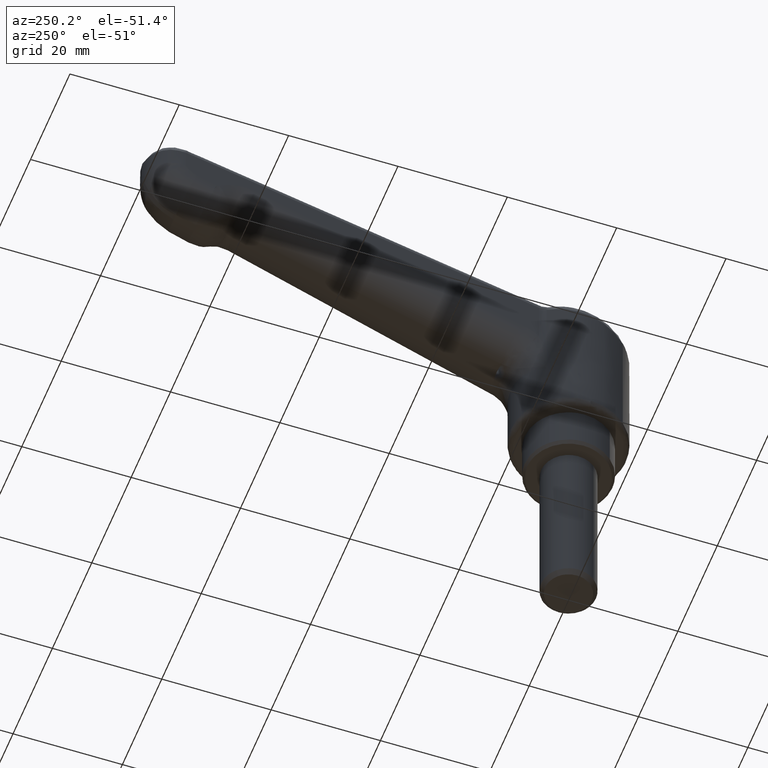
[diagram: clean part render]
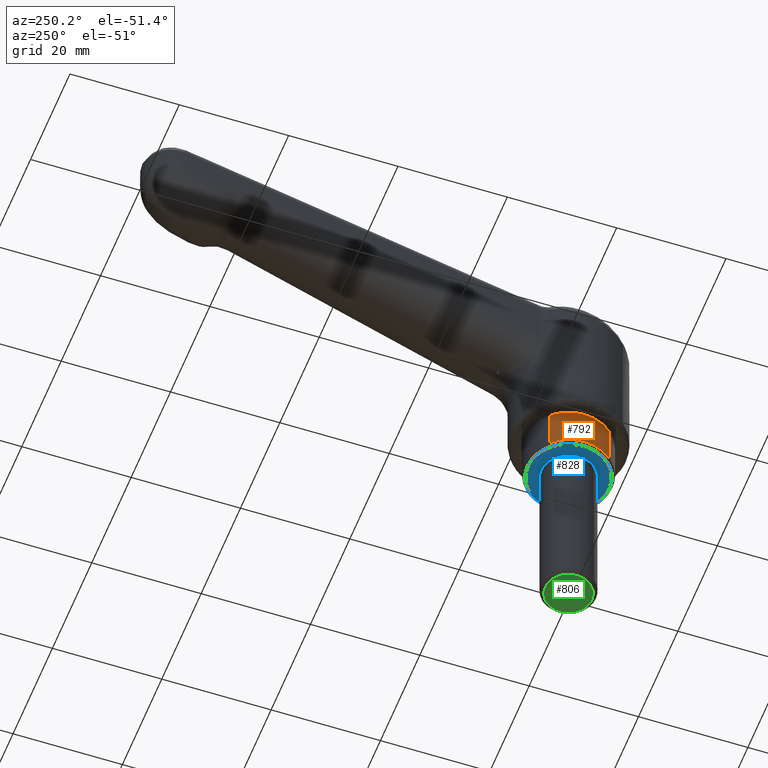
[diagram: same view with three faces highlighted in distinct colors, each labeled with its STEP entity id]
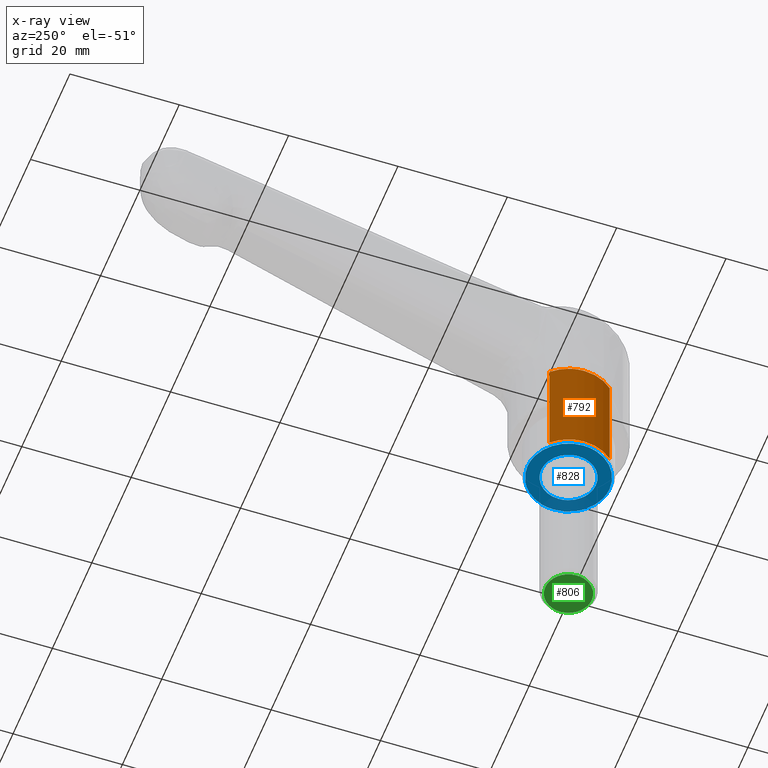
[diagram: x-ray of the same camera — body ghosted, the three highlighted faces saturated]
A machine part, auxiliary view with three faces highlighted in distinct colors.
The next image is the same camera in x-ray (body ghosted, the three faces saturated) — at least one of them is partly hidden behind the body in this view.
Their STEP definitions:

[orange] entity #792 — the highlighted face is a freeform B-spline surface patch.
#537=CARTESIAN_POINT('',(-5.404721820640237,5.898218841487182,-7.499999999999840));
#538=VERTEX_POINT('',#537);
#549=CARTESIAN_POINT('',(-0.000000868449518,7.999999999999953,-7.499999999999840));
#550=VERTEX_POINT('',#549);
#551=CARTESIAN_POINT('',(-0.000000868449518,7.999999999999953,-7.499999999999840));
#552=CARTESIAN_POINT('',(-0.401789589603420,8.000017098160935,-7.499999999999836));
#553=CARTESIAN_POINT('',(-1.236272001063092,7.937011895085488,-7.499999999999857));
#554=CARTESIAN_POINT('',(-2.473624329282662,7.644963287570554,-7.499999999999844));
#555=CARTESIAN_POINT('',(-3.933896005822123,7.037804326091514,-7.499999999999855));
#556=CARTESIAN_POINT('',(-4.880761526070574,6.378668293329109,-7.499999999999832));
#557=CARTESIAN_POINT('',(-5.404721820640237,5.898218841487182,-7.499999999999840));
#558=B_SPLINE_CURVE_WITH_KNOTS('',3,(#551,#552,#553,#554,#555,#556,#557),.UNSPECIFIED.,.F.,.U.,(4,1,1,1,4),(0.000000017501768,1.205371051327649,2.503473894968305,3.801558917053700,5.934151899018615),.UNSPECIFIED.);
#559=EDGE_CURVE('',#550,#538,#558,.T.);
#561=CARTESIAN_POINT('',(5.579455816611006,5.733207594180641,-7.499999999999839));
#562=VERTEX_POINT('',#561);
#563=CARTESIAN_POINT('',(5.579455816611006,5.733207594180641,-7.499999999999839));
#564=CARTESIAN_POINT('',(5.003507286801673,6.294217179991324,-7.499999999999871));
#565=CARTESIAN_POINT('',(4.024540995437059,6.993999550568444,-7.499999999999794));
#566=CARTESIAN_POINT('',(2.568002196061286,7.606139692300737,-7.499999999999881));
#567=CARTESIAN_POINT('',(1.350648998123143,7.921214749724847,-7.499999999999733));
#568=CARTESIAN_POINT('',(0.482382902118123,8.000052846914651,-7.499999999999945));
#569=CARTESIAN_POINT('',(-0.000000868449518,7.999999999999953,-7.499999999999840));
#570=B_SPLINE_CURVE_WITH_KNOTS('',3,(#563,#564,#565,#566,#567,#568,#569),.UNSPECIFIED.,.F.,.U.,(4,1,1,1,4),(0.000000017542862,2.411917881733490,3.569623984094885,4.727353768447296,6.174501230675460),.UNSPECIFIED.);
#571=EDGE_CURVE('',#562,#550,#570,.T.);
#672=CARTESIAN_POINT('',(5.579455816952638,5.733207593848230,11.999999999999980));
#673=VERTEX_POINT('',#672);
#718=CARTESIAN_POINT('',(-5.404721820807360,5.898218841333985,12.000000000001080));
#719=VERTEX_POINT('',#718);
#731=CARTESIAN_POINT('',(-5.404721820807360,5.898218841333985,12.000000000001080));
#732=CARTESIAN_POINT('',(-5.404721820640237,5.898218841487182,-7.499999999999840));
#733=QUASI_UNIFORM_CURVE('',1,(#731,#732),.UNSPECIFIED.,.F.,.U.);
#734=EDGE_CURVE('',#719,#538,#733,.T.);
#742=CARTESIAN_POINT('',(5.579455816952638,5.733207593848230,11.999999999999980));
#743=CARTESIAN_POINT('',(5.579455816611006,5.733207594180641,-7.499999999999839));
#744=QUASI_UNIFORM_CURVE('',1,(#742,#743),.UNSPECIFIED.,.F.,.U.);
#745=EDGE_CURVE('',#673,#562,#744,.T.);
#750=CARTESIAN_POINT('',(-5.404721660925280,5.898218694480991,12.487500000000230));
#751=CARTESIAN_POINT('',(0.165281452494910,11.002186186682017,12.487500000000225));
#752=CARTESIAN_POINT('',(5.579455939122908,5.733207777796483,12.487500000000221));
#753=CARTESIAN_POINT('',(-5.404721660925280,5.898218694480991,-7.999687499999841));
#754=CARTESIAN_POINT('',(0.165281452494910,11.002186186682017,-7.999687499999841));
#755=CARTESIAN_POINT('',(5.579455939122908,5.733207777796483,-7.999687499999843));
#763=(BOUNDED_SURFACE()B_SPLINE_SURFACE(2,1,((#750,#753),(#751,#754),(#752,#755)),.UNSPECIFIED.,.F.,.F.,.U.)B_SPLINE_SURFACE_WITH_KNOTS((3,3),(2,2),(0.0,12.721148469670320),(0.0,20.487187500000068),.UNSPECIFIED.)GEOMETRIC_REPRESENTATION_ITEM()RATIONAL_B_SPLINE_SURFACE(((1.0,1.0),(0.718822509939086,0.718822509939086),(0.977505800795127,0.977505800795127)))REPRESENTATION_ITEM('')SURFACE());
#764=CARTESIAN_POINT('',(-0.000000868449344,7.999999999999953,12.000000000000220));
#765=VERTEX_POINT('',#764);
#766=CARTESIAN_POINT('',(5.579455816952638,5.733207593848230,11.999999999999980));
#767=CARTESIAN_POINT('',(5.003546180424339,6.294274779100855,12.000000000000041));
#768=CARTESIAN_POINT('',(4.024499796478273,6.993932631958447,12.0));
#769=CARTESIAN_POINT('',(2.508571137070458,7.631166045808949,12.000000000000171));
#770=CARTESIAN_POINT('',(1.286344060565995,7.931791835117536,12.000000000000060));
#771=CARTESIAN_POINT('',(0.418062694701874,8.000025031659115,12.000000000000300));
#772=CARTESIAN_POINT('',(-0.000000868449344,7.999999999999953,12.000000000000220));
#773=B_SPLINE_CURVE_WITH_KNOTS('',3,(#766,#767,#768,#769,#770,#771,#772),.UNSPECIFIED.,.F.,.U.,(4,1,1,1,4),(0.000000017542756,2.411917881919631,3.569623984370369,4.920306073596558,6.174501231151978),.UNSPECIFIED.);
#774=EDGE_CURVE('',#673,#765,#773,.T.);
#775=ORIENTED_EDGE('',*,*,#774,.F.);
#776=ORIENTED_EDGE('',*,*,#745,.T.);
#777=ORIENTED_EDGE('',*,*,#571,.T.);
#778=ORIENTED_EDGE('',*,*,#559,.T.);
#779=ORIENTED_EDGE('',*,*,#734,.F.);
#780=CARTESIAN_POINT('',(-0.000000868449344,7.999999999999953,12.000000000000220));
#781=CARTESIAN_POINT('',(-0.649062120532924,8.000170291972882,12.000000000000311));
#782=CARTESIAN_POINT('',(-1.730714042899840,7.867592183143378,12.000000000000520));
#783=CARTESIAN_POINT('',(-2.994478340826905,7.442400210076500,12.000000000000700));
#784=CARTESIAN_POINT('',(-4.191309177657441,6.861319291989461,12.000000000000840));
#785=CARTESIAN_POINT('',(-4.926296491560218,6.336849494364754,12.000000000001060));
#786=CARTESIAN_POINT('',(-5.404721820807360,5.898218841333985,12.000000000001080));
#787=B_SPLINE_CURVE_WITH_KNOTS('',3,(#780,#781,#782,#783,#784,#785,#786),.UNSPECIFIED.,.F.,.U.,(4,1,1,1,4),(0.000000017500764,1.947144877312574,3.245224251870040,3.987007039436270,5.934151899245499),.UNSPECIFIED.);
#788=EDGE_CURVE('',#765,#719,#787,.T.);
#789=ORIENTED_EDGE('',*,*,#788,.F.);
#790=EDGE_LOOP('',(#775,#776,#777,#778,#779,#789));
#791=FACE_OUTER_BOUND('',#790,.T.);
#792=ADVANCED_FACE('',(#791),#763,.T.);

[blue] entity #828 — the highlighted face is a freeform B-spline surface patch.
#300=CARTESIAN_POINT('',(-3.626871692151759,-3.441772649813121,-7.999999999999787));
#301=VERTEX_POINT('',#300);
#307=CARTESIAN_POINT('',(-5.0,0.0,-7.999999999999789));
#308=VERTEX_POINT('',#307);
#309=CARTESIAN_POINT('',(-5.0,0.0,-7.999999999999789));
#310=CARTESIAN_POINT('',(-5.000064280185167,-0.355889402434258,-7.999999999999796));
#311=CARTESIAN_POINT('',(-4.938503162133185,-0.929227815387417,-7.999999999999782));
#312=CARTESIAN_POINT('',(-4.687731477409107,-1.805476403558021,-7.999999999999798));
#313=CARTESIAN_POINT('',(-4.294351205526193,-2.630606627033335,-7.999999999999782));
#314=CARTESIAN_POINT('',(-3.871893606012027,-3.183662831741487,-7.999999999999778));
#315=CARTESIAN_POINT('',(-3.626871692151759,-3.441772649813121,-7.999999999999787));
#316=B_SPLINE_CURVE_WITH_KNOTS('',3,(#309,#310,#311,#312,#313,#314,#315),.UNSPECIFIED.,.F.,.U.,(4,1,1,1,4),(0.000000026095447,1.067658143280683,1.720115271875948,2.728455105045868,3.796113222217000),.UNSPECIFIED.);
#317=EDGE_CURVE('',#308,#301,#316,.T.);
#319=CARTESIAN_POINT('',(-0.000001103779349,4.999999999999878,-7.999999999999789));
#320=VERTEX_POINT('',#319);
#321=CARTESIAN_POINT('',(-0.000001103779349,4.999999999999878,-7.999999999999789));
#322=CARTESIAN_POINT('',(-0.470441975822138,5.000196043293731,-7.999999999999795));
#323=CARTESIAN_POINT('',(-1.227086763881716,4.892355118754490,-7.999999999999772));
#324=CARTESIAN_POINT('',(-2.338020565900336,4.463882242120339,-7.999999999999789));
#325=CARTESIAN_POINT('',(-3.198894129145697,3.896301851222552,-7.999999999999798));
#326=CARTESIAN_POINT('',(-3.883017268040137,3.186343851021909,-7.999999999999782));
#327=CARTESIAN_POINT('',(-4.358715016342929,2.492993198492975,-7.999999999999808));
#328=CARTESIAN_POINT('',(-4.674697816899270,1.824913079576614,-7.999999999999789));
#329=CARTESIAN_POINT('',(-4.930481079109805,0.981703186871804,-7.999999999999723));
#330=CARTESIAN_POINT('',(-5.000084558044544,0.388613427327358,-7.999999999999915));
#331=CARTESIAN_POINT('',(-5.0,0.0,-7.999999999999789));
#332=B_SPLINE_CURVE_WITH_KNOTS('',3,(#321,#322,#323,#324,#325,#326,#327,#328,#329,#330,#331),.UNSPECIFIED.,.F.,.U.,(4,1,1,1,1,1,1,1,4),(0.000000097203212,1.411259758466368,2.270310549849951,3.558871746765917,4.479238645372305,5.215559708955095,6.074605755319403,6.688213260910828,7.854030292268615),.UNSPECIFIED.);
#333=EDGE_CURVE('',#320,#308,#332,.T.);
#335=CARTESIAN_POINT('',(5.0,0.0,-7.999999999999789));
#336=VERTEX_POINT('',#335);
#337=CARTESIAN_POINT('',(5.0,0.0,-7.999999999999789));
#338=CARTESIAN_POINT('',(5.000326109408091,0.552285053288000,-7.999999999999780));
#339=CARTESIAN_POINT('',(4.863055884499499,1.370165345650487,-7.999999999999807));
#340=CARTESIAN_POINT('',(4.403738947201187,2.423444590565105,-7.999999999999782));
#341=CARTESIAN_POINT('',(3.855744452348204,3.243714687971242,-7.999999999999803));
#342=CARTESIAN_POINT('',(3.114413451346123,3.958221952537999,-7.999999999999717));
#343=CARTESIAN_POINT('',(2.156294823080378,4.556778655121509,-7.999999999999875));
#344=CARTESIAN_POINT('',(1.124937665598018,4.918695205832672,-7.999999999999832));
#345=CARTESIAN_POINT('',(0.347696860981222,5.000029896821008,-7.999999999999703));
#346=CARTESIAN_POINT('',(-0.000001103779349,4.999999999999878,-7.999999999999789));
#347=B_SPLINE_CURVE_WITH_KNOTS('',3,(#337,#338,#339,#340,#341,#342,#343,#344,#345,#346),.UNSPECIFIED.,.F.,.U.,(4,1,1,1,1,1,1,4),(0.000000096817831,1.656707152819139,2.454392529768717,3.436170344008168,4.601945983390094,5.522359643949219,6.810920129419353,7.854031536492999),.UNSPECIFIED.);
#348=EDGE_CURVE('',#336,#320,#347,.T.);
#350=CARTESIAN_POINT('',(3.228710429602193,-3.817778370063518,-7.999999999999788));
#351=VERTEX_POINT('',#350);
#352=CARTESIAN_POINT('',(3.228710429602193,-3.817778370063518,-7.999999999999788));
#353=CARTESIAN_POINT('',(3.643564636190706,-3.467351711759754,-7.999999999999782));
#354=CARTESIAN_POINT('',(4.237991118607391,-2.769128607500307,-7.999999999999795));
#355=CARTESIAN_POINT('',(4.851067656871609,-1.447824184366138,-7.999999999999778));
#356=CARTESIAN_POINT('',(5.000313366956289,-0.543039954493708,-7.999999999999800));
#357=CARTESIAN_POINT('',(5.0,0.0,-7.999999999999789));
#358=B_SPLINE_CURVE_WITH_KNOTS('',3,(#352,#353,#354,#355,#356,#357),.UNSPECIFIED.,.F.,.U.,(4,1,1,4),(0.000000033444583,1.629016363478472,2.715025173613623,4.344041503629333),.UNSPECIFIED.);
#359=EDGE_CURVE('',#351,#336,#358,.T.);
#385=CARTESIAN_POINT('',(0.000001103779310,-4.999999999999878,-7.999999999999789));
#386=VERTEX_POINT('',#385);
#387=CARTESIAN_POINT('',(0.000001103779310,-4.999999999999878,-7.999999999999789));
#388=CARTESIAN_POINT('',(0.292497077806147,-5.000013982251756,-7.999999999999794));
#389=CARTESIAN_POINT('',(0.968905010369025,-4.940528679409872,-7.999999999999789));
#390=CARTESIAN_POINT('',(2.097277982247787,-4.603048068901714,-7.999999999999790));
#391=CARTESIAN_POINT('',(2.851952960627691,-4.136689893905315,-7.999999999999788));
#392=CARTESIAN_POINT('',(3.228710429602193,-3.817778370063518,-7.999999999999788));
#393=B_SPLINE_CURVE_WITH_KNOTS('',3,(#387,#388,#389,#390,#391,#392),.UNSPECIFIED.,.F.,.U.,(4,1,1,4),(0.000000020080380,0.877497794597346,2.029207884121568,3.509990187573193),.UNSPECIFIED.);
#394=EDGE_CURVE('',#386,#351,#393,.T.);
#396=CARTESIAN_POINT('',(-3.626871692151759,-3.441772649813121,-7.999999999999787));
#397=CARTESIAN_POINT('',(-3.350508691011283,-3.733120128624183,-7.999999999999793));
#398=CARTESIAN_POINT('',(-2.776304861834567,-4.207926686878392,-7.999999999999774));
#399=CARTESIAN_POINT('',(-1.828891564819324,-4.688227627735443,-7.999999999999815));
#400=CARTESIAN_POINT('',(-0.908795673168094,-4.945447872588546,-7.999999999999774));
#401=CARTESIAN_POINT('',(-0.295887175747678,-5.000020987692825,-7.999999999999790));
#402=CARTESIAN_POINT('',(0.000001103779310,-4.999999999999878,-7.999999999999789));
#403=B_SPLINE_CURVE_WITH_KNOTS('',3,(#396,#397,#398,#399,#400,#401,#402),.UNSPECIFIED.,.F.,.U.,(4,1,1,1,4),(0.000000027681850,1.204698727122665,2.219165650059670,3.170249548603886,4.057918743719057),.UNSPECIFIED.);
#404=EDGE_CURVE('',#301,#386,#403,.T.);
#425=CARTESIAN_POINT('',(-0.000001837508002,-7.499999999999775,-7.999999999999799));
#426=VERTEX_POINT('',#425);
#427=CARTESIAN_POINT('',(-5.256819965147500,-5.349378860057927,-7.999999770346292));
#428=VERTEX_POINT('',#427);
#429=CARTESIAN_POINT('',(-0.000001837508002,-7.499999999999775,-7.999999999999799));
#430=CARTESIAN_POINT('',(-0.637139064804244,-7.500193324577643,-7.999999972165331));
#431=CARTESIAN_POINT('',(-1.577540752246725,-7.379402841512403,-7.999999931082189));
#432=CARTESIAN_POINT('',(-2.819980507207728,-6.973775557338858,-7.999999876803992));
#433=CARTESIAN_POINT('',(-3.998384601013007,-6.406048717023292,-7.999999825323321));
#434=CARTESIAN_POINT('',(-4.802517412230472,-5.796090062617654,-7.999999790193276));
#435=CARTESIAN_POINT('',(-5.256819965147500,-5.349378860057927,-7.999999770346292));
#436=B_SPLINE_CURVE_WITH_KNOTS('',3,(#429,#430,#431,#432,#433,#434,#435),.UNSPECIFIED.,.F.,.U.,(4,1,1,1,4),(0.000000020612251,1.911352636856190,2.821530053167759,3.913717934236996,5.825070550470930),.UNSPECIFIED.);
#437=EDGE_CURVE('',#426,#428,#436,.T.);
#439=CARTESIAN_POINT('',(5.349377877255078,-5.256818999349845,-8.000000229653326));
#440=VERTEX_POINT('',#439);
#441=CARTESIAN_POINT('',(5.349377877255078,-5.256818999349845,-8.000000229653326));
#442=CARTESIAN_POINT('',(4.892918707531434,-5.721619173444946,-8.000000210057163));
#443=CARTESIAN_POINT('',(3.931720599063881,-6.473061294793850,-8.000000168792031));
#444=CARTESIAN_POINT('',(2.109198816578686,-7.291214166851699,-8.000000090549680));
#445=CARTESIAN_POINT('',(0.775554338996199,-7.500393852467454,-8.000000033295054));
#446=CARTESIAN_POINT('',(-0.000001837508002,-7.499999999999775,-7.999999999999799));
#447=B_SPLINE_CURVE_WITH_KNOTS('',3,(#441,#442,#443,#444,#445,#446),.UNSPECIFIED.,.F.,.U.,(4,1,1,4),(0.000000018941336,1.954309684861788,3.629419423322939,5.955975842369344),.UNSPECIFIED.);
#448=EDGE_CURVE('',#440,#426,#447,.T.);
#512=CARTESIAN_POINT('',(-7.500000000000000,0.0,-7.999999999999799));
#513=VERTEX_POINT('',#512);
#514=CARTESIAN_POINT('',(-5.256819965147500,-5.349378860057927,-7.999999770346292));
#515=CARTESIAN_POINT('',(-5.765944743130583,-4.849492610821446,-7.999999791806851));
#516=CARTESIAN_POINT('',(-6.506530266281575,-3.877320723564586,-7.999999833543042));
#517=CARTESIAN_POINT('',(-7.114624202654590,-2.476070656429148,-7.999999893699901));
#518=CARTESIAN_POINT('',(-7.427579810941316,-1.240800937915859,-7.999999946731209));
#519=CARTESIAN_POINT('',(-7.500049458522969,-0.465310823318564,-7.999999980023474));
#520=CARTESIAN_POINT('',(-7.500000000000000,0.0,-7.999999999999799));
#521=B_SPLINE_CURVE_WITH_KNOTS('',3,(#514,#515,#516,#517,#518,#519,#520),.UNSPECIFIED.,.F.,.U.,(4,1,1,1,4),(0.000000018922890,2.140436913752020,3.629418636947421,4.560044307743674,5.955974551950257),.UNSPECIFIED.);
#522=EDGE_CURVE('',#428,#513,#521,.T.);
#597=CARTESIAN_POINT('',(7.500000000000000,0.0,-7.999999999999799));
#598=VERTEX_POINT('',#597);
#599=CARTESIAN_POINT('',(7.500000000000000,0.0,-7.999999999999799));
#600=CARTESIAN_POINT('',(7.500079744378921,-0.515764585266981,-8.000000022531900));
#601=CARTESIAN_POINT('',(7.408857389603397,-1.395555401394479,-8.000000060967132));
#602=CARTESIAN_POINT('',(7.015035945065766,-2.769966942015935,-8.000000121010734));
#603=CARTESIAN_POINT('',(6.376726268338791,-4.054549757480733,-8.000000177130104));
#604=CARTESIAN_POINT('',(5.710922550194248,-4.888994522723587,-8.000000213584196));
#605=CARTESIAN_POINT('',(5.349377877255078,-5.256818999349845,-8.000000229653326));
#606=B_SPLINE_CURVE_WITH_KNOTS('',3,(#599,#600,#601,#602,#603,#604,#605),.UNSPECIFIED.,.F.,.U.,(4,1,1,1,4),(0.000000020594904,1.547285317002737,2.639501923059120,4.277786556528509,5.825071852913538),.UNSPECIFIED.);
#607=EDGE_CURVE('',#598,#440,#606,.T.);
#609=CARTESIAN_POINT('',(0.000001837507866,7.499999999999775,-7.999999999999799));
#610=VERTEX_POINT('',#609);
#611=CARTESIAN_POINT('',(0.000001837507866,7.499999999999775,-7.999999999999799));
#612=CARTESIAN_POINT('',(0.429510923046782,7.500036659154733,-7.999999999999795));
#613=CARTESIAN_POINT('',(1.257849177240104,7.428653566278252,-7.999999999999810));
#614=CARTESIAN_POINT('',(2.390572818049970,7.137522076870679,-7.999999999999790));
#615=CARTESIAN_POINT('',(3.439013340020187,6.695675129460226,-7.999999999999814));
#616=CARTESIAN_POINT('',(4.596351235473820,5.992470283108201,-7.999999999999814));
#617=CARTESIAN_POINT('',(5.683408594079126,4.982661496559301,-7.999999999999750));
#618=CARTESIAN_POINT('',(6.457066750391824,3.869452148967909,-7.999999999999890));
#619=CARTESIAN_POINT('',(6.961976433027978,2.850836420971213,-7.999999999999770));
#620=CARTESIAN_POINT('',(7.375033114604793,1.625952471280183,-7.999999999999833));
#621=CARTESIAN_POINT('',(7.500159667114872,0.613603304804631,-7.999999999999790));
#622=CARTESIAN_POINT('',(7.500000000000000,0.0,-7.999999999999799));
#623=B_SPLINE_CURVE_WITH_KNOTS('',3,(#611,#612,#613,#614,#615,#616,#617,#618,#619,#620,#621,#622),.UNSPECIFIED.,.F.,.U.,(4,1,1,1,1,1,1,1,1,4),(0.000000068853923,1.288529565890192,2.485059324324581,3.497505057862961,4.694016074478512,6.534787226343930,7.915378703737675,8.743743288788142,9.940270970072705,11.781045335908569),.UNSPECIFIED.);
#624=EDGE_CURVE('',#610,#598,#623,.T.);
#626=CARTESIAN_POINT('',(-7.500000000000000,0.0,-7.999999999999799));
#627=CARTESIAN_POINT('',(-7.500036413504179,0.429508196850274,-7.999999999999785));
#628=CARTESIAN_POINT('',(-7.423361875984109,1.319205934844997,-7.999999999999830));
#629=CARTESIAN_POINT('',(-7.045826175989802,2.717194712153439,-7.999999999999760));
#630=CARTESIAN_POINT('',(-6.393517725062237,4.013058933373398,-7.999999999999909));
#631=CARTESIAN_POINT('',(-5.597758051810028,5.032571946373476,-7.999999999999655));
#632=CARTESIAN_POINT('',(-4.774090465735458,5.816772336058745,-7.999999999999858));
#633=CARTESIAN_POINT('',(-3.922275809126653,6.424553370251287,-7.999999999999799));
#634=CARTESIAN_POINT('',(-2.854417210339708,6.970317327607057,-7.999999999999783));
#635=CARTESIAN_POINT('',(-1.564622186985335,7.387676721526010,-7.999999999999848));
#636=CARTESIAN_POINT('',(-0.552239166189065,7.500091383971560,-7.999999999999766));
#637=CARTESIAN_POINT('',(0.000001837507866,7.499999999999775,-7.999999999999799));
#638=B_SPLINE_CURVE_WITH_KNOTS('',3,(#626,#627,#628,#629,#630,#631,#632,#633,#634,#635,#636,#637),.UNSPECIFIED.,.F.,.U.,(4,1,1,1,1,1,1,1,1,4),(0.000000068211998,1.288529791873598,2.669142691701039,4.325868182230265,5.614440628432888,6.534788373304304,7.731298424378806,8.743744826266600,10.124339728738111,11.781047407221180),.UNSPECIFIED.);
#639=EDGE_CURVE('',#513,#610,#638,.T.);
#807=CARTESIAN_POINT('',(-8.249249970927089,8.249249970926844,-7.999999999999799));
#808=CARTESIAN_POINT('',(8.249250373258443,8.249249970926844,-7.999999999999799));
#809=CARTESIAN_POINT('',(-8.249249970927089,-8.249250373258194,-7.999999999999799));
#810=CARTESIAN_POINT('',(8.249250373258443,-8.249250373258194,-7.999999999999799));
#811=B_SPLINE_SURFACE_WITH_KNOTS('',1,1,((#807,#809),(#808,#810)),.UNSPECIFIED.,.F.,.F.,.U.,(2,2),(2,2),(0.0,16.498500344185530),(0.0,16.498500344185040),.UNSPECIFIED.);
#812=ORIENTED_EDGE('',*,*,#639,.T.);
#813=ORIENTED_EDGE('',*,*,#624,.T.);
#814=ORIENTED_EDGE('',*,*,#607,.T.);
#815=ORIENTED_EDGE('',*,*,#448,.T.);
#816=ORIENTED_EDGE('',*,*,#437,.T.);
#817=ORIENTED_EDGE('',*,*,#522,.T.);
#818=EDGE_LOOP('',(#812,#813,#814,#815,#816,#817));
#819=FACE_OUTER_BOUND('',#818,.T.);
#820=ORIENTED_EDGE('',*,*,#348,.T.);
#821=ORIENTED_EDGE('',*,*,#333,.T.);
#822=ORIENTED_EDGE('',*,*,#317,.T.);
#823=ORIENTED_EDGE('',*,*,#404,.T.);
#824=ORIENTED_EDGE('',*,*,#394,.T.);
#825=ORIENTED_EDGE('',*,*,#359,.T.);
#826=EDGE_LOOP('',(#820,#821,#822,#823,#824,#825));
#827=FACE_BOUND('',#826,.T.);
#828=ADVANCED_FACE('',(#819,#827),#811,.T.);

[green] entity #806 — the highlighted face is a freeform B-spline surface patch.
#66=CARTESIAN_POINT('',(0.000001200776021,4.249999999999830,-39.999999999999993));
#67=VERTEX_POINT('',#66);
#68=CARTESIAN_POINT('',(2.978864688839418,3.031314730026602,-39.999999849925871));
#69=VERTEX_POINT('',#68);
#70=CARTESIAN_POINT('',(0.000001200776021,4.249999999999830,-39.999999999999993));
#71=CARTESIAN_POINT('',(0.326654112557404,4.250072452875145,-39.999999983543340));
#72=CARTESIAN_POINT('',(0.893948480520442,4.184250466007558,-39.999999954963158));
#73=CARTESIAN_POINT('',(1.730485640189463,3.911218712777133,-39.999999912818772));
#74=CARTESIAN_POINT('',(2.409819295955719,3.531503864365101,-39.999999878594302));
#75=CARTESIAN_POINT('',(2.819460656544708,3.187965420814396,-39.999999857956432));
#76=CARTESIAN_POINT('',(2.978864688839418,3.031314730026602,-39.999999849925871));
#77=B_SPLINE_CURVE_WITH_KNOTS('',3,(#70,#71,#72,#73,#74,#75,#76),.UNSPECIFIED.,.F.,.U.,(4,1,1,1,4),(0.000000028241171,0.979948205483065,1.701995687098671,2.630384779181781,3.300873175637173),.UNSPECIFIED.);
#78=EDGE_CURVE('',#67,#69,#77,.T.);
#80=CARTESIAN_POINT('',(-4.250000000000000,0.0,-40.0));
#81=VERTEX_POINT('',#80);
#82=CARTESIAN_POINT('',(-4.250000000000000,0.0,-40.0));
#83=CARTESIAN_POINT('',(-4.250007322616236,0.260766663632477,-40.000000000000007));
#84=CARTESIAN_POINT('',(-4.193897868607354,0.869264842970804,-40.000000000000021));
#85=CARTESIAN_POINT('',(-3.924110105897664,1.720878773369061,-39.999999999999993));
#86=CARTESIAN_POINT('',(-3.466640155700594,2.505694704060133,-40.000000000000028));
#87=CARTESIAN_POINT('',(-2.911201861362774,3.133851981071482,-39.999999999999922));
#88=CARTESIAN_POINT('',(-2.174401723991318,3.694529074201974,-39.999999999999979));
#89=CARTESIAN_POINT('',(-1.199489429451590,4.133877749406633,-40.000000000000519));
#90=CARTESIAN_POINT('',(-0.417259144393960,4.250159600096990,-39.999999999999510));
#91=CARTESIAN_POINT('',(0.000001200776021,4.249999999999830,-39.999999999999993));
#92=B_SPLINE_CURVE_WITH_KNOTS('',3,(#82,#83,#84,#85,#86,#87,#88,#89,#90,#91),.UNSPECIFIED.,.F.,.U.,(4,1,1,1,1,1,1,4),(0.000000114845323,0.782315765273582,1.825451430376423,2.659957869883381,3.494419529049976,4.328918709624942,5.424193029768748,6.675926954008270),.UNSPECIFIED.);
#93=EDGE_CURVE('',#81,#67,#92,.T.);
#95=CARTESIAN_POINT('',(-0.000001200775992,-4.249999999999830,-40.0));
#96=VERTEX_POINT('',#95);
#97=CARTESIAN_POINT('',(-0.000001200775992,-4.249999999999830,-40.0));
#98=CARTESIAN_POINT('',(-0.486840392855738,-4.250379174479245,-39.999999999999972));
#99=CARTESIAN_POINT('',(-1.234147269614482,-4.120079745880286,-40.000000000000028));
#100=CARTESIAN_POINT('',(-2.088848074954197,-3.722130576176925,-39.999999999999950));
#101=CARTESIAN_POINT('',(-2.680418553517036,-3.321591762541416,-40.000000000000099));
#102=CARTESIAN_POINT('',(-3.150978443745245,-2.879051238130443,-39.999999999999837));
#103=CARTESIAN_POINT('',(-3.587044866236507,-2.313161394668195,-40.000000000000128));
#104=CARTESIAN_POINT('',(-3.945035735381930,-1.653268017342378,-39.999999999999922));
#105=CARTESIAN_POINT('',(-4.193487245476878,-0.851860884982914,-40.000000000000242));
#106=CARTESIAN_POINT('',(-4.250034158737183,-0.278161485758794,-39.999999999999481));
#107=CARTESIAN_POINT('',(-4.250000000000000,0.0,-40.0));
#108=B_SPLINE_CURVE_WITH_KNOTS('',3,(#97,#98,#99,#100,#101,#102,#103,#104,#105,#106,#107),.UNSPECIFIED.,.F.,.U.,(4,1,1,1,1,1,1,1,4),(0.000000115263101,1.460353953672215,2.242704444170719,2.816431724029900,3.598720937038263,4.172446358880552,4.954787473147084,5.841442095944350,6.675925600445364),.UNSPECIFIED.);
#109=EDGE_CURVE('',#96,#81,#108,.T.);
#111=CARTESIAN_POINT('',(3.031314087783916,-2.978864057709288,-40.000000150074158));
#112=VERTEX_POINT('',#111);
#113=CARTESIAN_POINT('',(3.031314087783916,-2.978864057709288,-40.000000150074158));
#114=CARTESIAN_POINT('',(2.821894218898318,-3.192045115131209,-40.000000139706273));
#115=CARTESIAN_POINT('',(2.398754303627485,-3.540209080852454,-40.000000118757342));
#116=CARTESIAN_POINT('',(1.747099161840814,-3.893106819080578,-40.000000086495390));
#117=CARTESIAN_POINT('',(0.966733741343613,-4.170237818489447,-40.000000047861000));
#118=CARTESIAN_POINT('',(0.386743486928516,-4.250154987587790,-40.000000019147258));
#119=CARTESIAN_POINT('',(-0.000001200775992,-4.249999999999830,-40.0));
#120=B_SPLINE_CURVE_WITH_KNOTS('',3,(#113,#114,#115,#116,#117,#118,#119),.UNSPECIFIED.,.F.,.U.,(4,1,1,1,4),(0.000000031544529,0.896499578800727,1.634809592749668,2.214872811145201,3.375053113119062),.UNSPECIFIED.);
#121=EDGE_CURVE('',#112,#96,#120,.T.);
#222=CARTESIAN_POINT('',(4.250000000000000,0.0,-40.0));
#223=VERTEX_POINT('',#222);
#224=CARTESIAN_POINT('',(2.978864688839418,3.031314730026602,-39.999999849925871));
#225=CARTESIAN_POINT('',(3.254802826079023,2.760341143494858,-39.999999863341188));
#226=CARTESIAN_POINT('',(3.655858290201941,2.240656586742039,-39.999999889069862));
#227=CARTESIAN_POINT('',(4.124960928511092,1.212713971922482,-39.999999939960787));
#228=CARTESIAN_POINT('',(4.250335774739031,0.474669779903131,-39.999999976500384));
#229=CARTESIAN_POINT('',(4.250000000000000,0.0,-40.0));
#230=B_SPLINE_CURVE_WITH_KNOTS('',3,(#224,#225,#226,#227,#228,#229),.UNSPECIFIED.,.F.,.U.,(4,1,1,4),(0.000000031533069,1.160180043633069,1.951195563684954,3.375052269855110),.UNSPECIFIED.);
#231=EDGE_CURVE('',#69,#223,#230,.T.);
#256=CARTESIAN_POINT('',(4.250000000000000,0.0,-40.0));
#257=CARTESIAN_POINT('',(4.250038560251362,-0.292264549485578,-40.000000014724222));
#258=CARTESIAN_POINT('',(4.185926131983756,-0.911159395736763,-40.000000045903867));
#259=CARTESIAN_POINT('',(3.835926937138817,-1.962027453792747,-40.000000098846400));
#260=CARTESIAN_POINT('',(3.368995507498689,-2.635729475149497,-40.000000132787072));
#261=CARTESIAN_POINT('',(3.031314087783916,-2.978864057709288,-40.000000150074158));
#262=B_SPLINE_CURVE_WITH_KNOTS('',3,(#256,#257,#258,#259,#260,#261),.UNSPECIFIED.,.F.,.U.,(4,1,1,4),(0.000000028229997,0.876795686723262,1.856727072965902,3.300874026758287),.UNSPECIFIED.);
#263=EDGE_CURVE('',#223,#112,#262,.T.);
#793=CARTESIAN_POINT('',(-4.674574983525350,-4.674574983525164,-40.0));
#794=CARTESIAN_POINT('',(4.674575211513117,-4.674574983525164,-40.0));
#795=CARTESIAN_POINT('',(-4.674574983525350,4.674575211512931,-40.0));
#796=CARTESIAN_POINT('',(4.674575211513117,4.674575211512931,-40.0));
#797=B_SPLINE_SURFACE_WITH_KNOTS('',1,1,((#793,#795),(#794,#796)),.UNSPECIFIED.,.F.,.F.,.U.,(2,2),(2,2),(0.0,9.349150195038467),(0.0,9.349150195038096),.UNSPECIFIED.);
#798=ORIENTED_EDGE('',*,*,#263,.T.);
#799=ORIENTED_EDGE('',*,*,#121,.T.);
#800=ORIENTED_EDGE('',*,*,#109,.T.);
#801=ORIENTED_EDGE('',*,*,#93,.T.);
#802=ORIENTED_EDGE('',*,*,#78,.T.);
#803=ORIENTED_EDGE('',*,*,#231,.T.);
#804=EDGE_LOOP('',(#798,#799,#800,#801,#802,#803));
#805=FACE_OUTER_BOUND('',#804,.T.);
#806=ADVANCED_FACE('',(#805),#797,.F.);